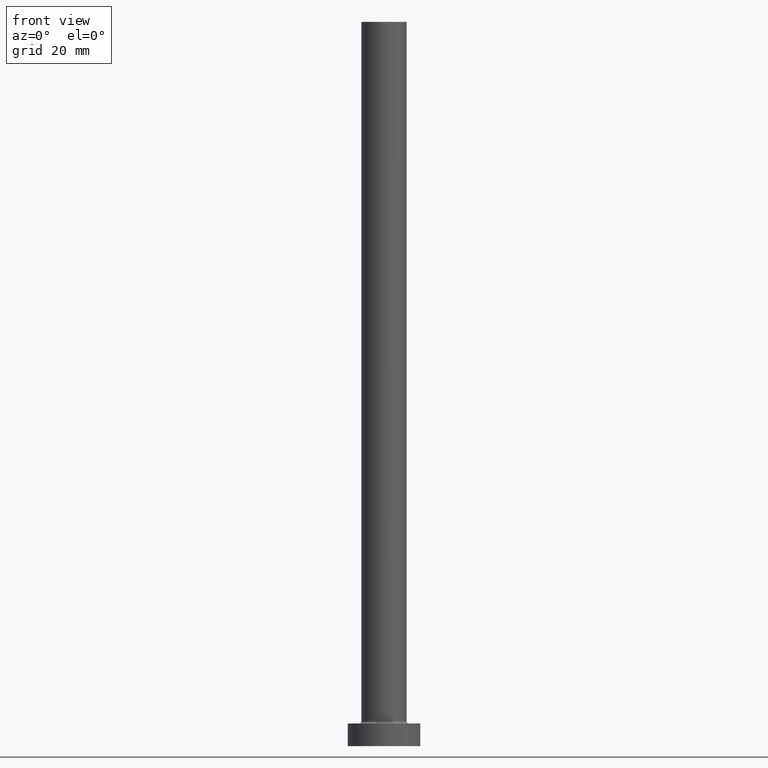
[diagram: clean part render]
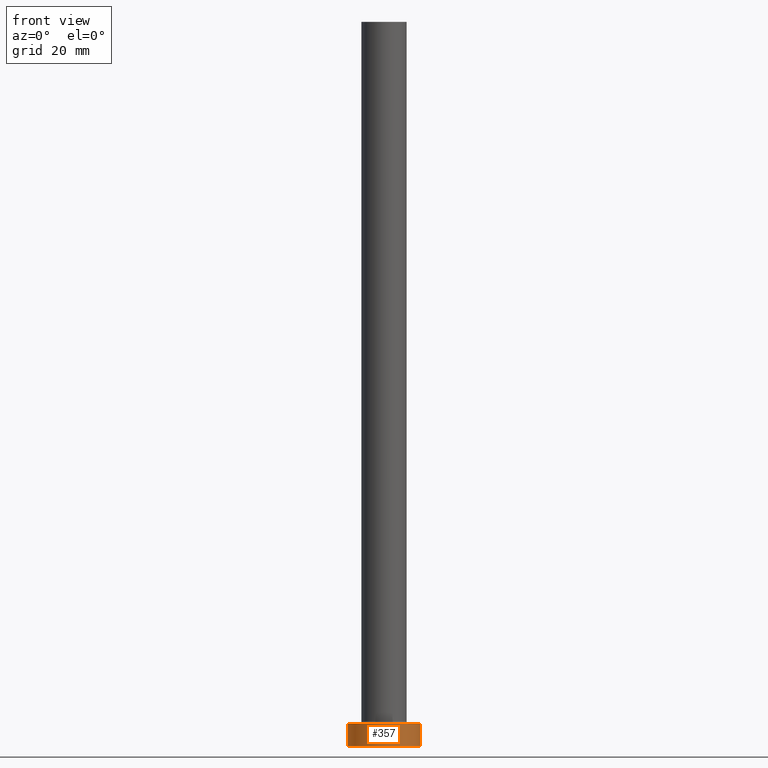
[diagram: same view with one face highlighted and labeled with its STEP entity id]
A machine part, front view. The second image highlights one B-rep face of the part: STEP entity #357.
In plain terms, the highlighted cylindrical surface (edge-blend (fillet) strip) has radius 8 mm, axis along (-0, -0, -1).
Its self-contained STEP definition (entity closure, byte-faithful):
#9 = CARTESIAN_POINT ( 'NONE',  ( 0.000000000000000000, 0.000000000000000000, 5.000000000000000000 ) ) ;
#16 = CARTESIAN_POINT ( 'NONE',  ( 8.000000000000000000, 9.797174393178825657E-16, 0.000000000000000000 ) ) ;
#17 = DIRECTION ( 'NONE',  ( -0.000000000000000000, -0.000000000000000000, -1.000000000000000000 ) ) ;
#19 = VERTEX_POINT ( 'NONE', #16 ) ;
#24 = CARTESIAN_POINT ( 'NONE',  ( 0.000000000000000000, 0.000000000000000000, 0.000000000000000000 ) ) ;
#32 = DIRECTION ( 'NONE',  ( -0.000000000000000000, -0.000000000000000000, -1.000000000000000000 ) ) ;
#49 = ORIENTED_EDGE ( 'NONE', *, *, #330, .F. ) ;
#85 = ORIENTED_EDGE ( 'NONE', *, *, #312, .T. ) ;
#103 = CYLINDRICAL_SURFACE ( 'NONE', #315, 8.000000000000000000 ) ;
#111 = DIRECTION ( 'NONE',  ( 0.000000000000000000, 0.000000000000000000, 1.000000000000000000 ) ) ;
#126 = EDGE_CURVE ( 'NONE', #309, #195, #387, .T. ) ;
#161 = VERTEX_POINT ( 'NONE', #300 ) ;
#164 = CIRCLE ( 'NONE', #271, 8.000000000000000000 ) ;
#165 = DIRECTION ( 'NONE',  ( 0.000000000000000000, 0.000000000000000000, 1.000000000000000000 ) ) ;
#166 = EDGE_LOOP ( 'NONE', ( #49, #376, #85, #343 ) ) ;
#195 = VERTEX_POINT ( 'NONE', #461 ) ;
#204 = FACE_OUTER_BOUND ( 'NONE', #166, .T. ) ;
#257 = EDGE_CURVE ( 'NONE', #161, #19, #164, .T. ) ;
#258 = VECTOR ( 'NONE', #17, 1000.000000000000000 ) ;
#267 = LINE ( 'NONE', #338, #258 ) ;
#271 = AXIS2_PLACEMENT_3D ( 'NONE', #24, #165, #336 ) ;
#278 = AXIS2_PLACEMENT_3D ( 'NONE', #9, #111, #296 ) ;
#280 = LINE ( 'NONE', #313, #328 ) ;
#296 = DIRECTION ( 'NONE',  ( 1.000000000000000000, 0.000000000000000000, 0.000000000000000000 ) ) ;
#300 = CARTESIAN_POINT ( 'NONE',  ( -8.000000000000000000, 0.000000000000000000, 0.000000000000000000 ) ) ;
#309 = VERTEX_POINT ( 'NONE', #437 ) ;
#312 = EDGE_CURVE ( 'NONE', #309, #161, #267, .T. ) ;
#313 = CARTESIAN_POINT ( 'NONE',  ( 8.000000000000000000, 9.797174393178825657E-16, 5.000000000000000000 ) ) ;
#315 = AXIS2_PLACEMENT_3D ( 'NONE', #320, #418, #379 ) ;
#320 = CARTESIAN_POINT ( 'NONE',  ( 0.000000000000000000, 0.000000000000000000, 5.000000000000000000 ) ) ;
#328 = VECTOR ( 'NONE', #32, 1000.000000000000000 ) ;
#330 = EDGE_CURVE ( 'NONE', #195, #19, #280, .T. ) ;
#336 = DIRECTION ( 'NONE',  ( 1.000000000000000000, 0.000000000000000000, 0.000000000000000000 ) ) ;
#338 = CARTESIAN_POINT ( 'NONE',  ( -8.000000000000000000, 0.000000000000000000, 5.000000000000000000 ) ) ;
#343 = ORIENTED_EDGE ( 'NONE', *, *, #257, .T. ) ;
#357 = ADVANCED_FACE ( 'NONE', ( #204 ), #103, .T. ) ;
#376 = ORIENTED_EDGE ( 'NONE', *, *, #126, .F. ) ;
#379 = DIRECTION ( 'NONE',  ( -1.000000000000000000, 0.000000000000000000, 0.000000000000000000 ) ) ;
#387 = CIRCLE ( 'NONE', #278, 8.000000000000000000 ) ;
#418 = DIRECTION ( 'NONE',  ( -0.000000000000000000, -0.000000000000000000, -1.000000000000000000 ) ) ;
#437 = CARTESIAN_POINT ( 'NONE',  ( -8.000000000000000000, 0.000000000000000000, 5.000000000000000000 ) ) ;
#461 = CARTESIAN_POINT ( 'NONE',  ( 8.000000000000000000, 9.797174393178825657E-16, 5.000000000000000000 ) ) ;